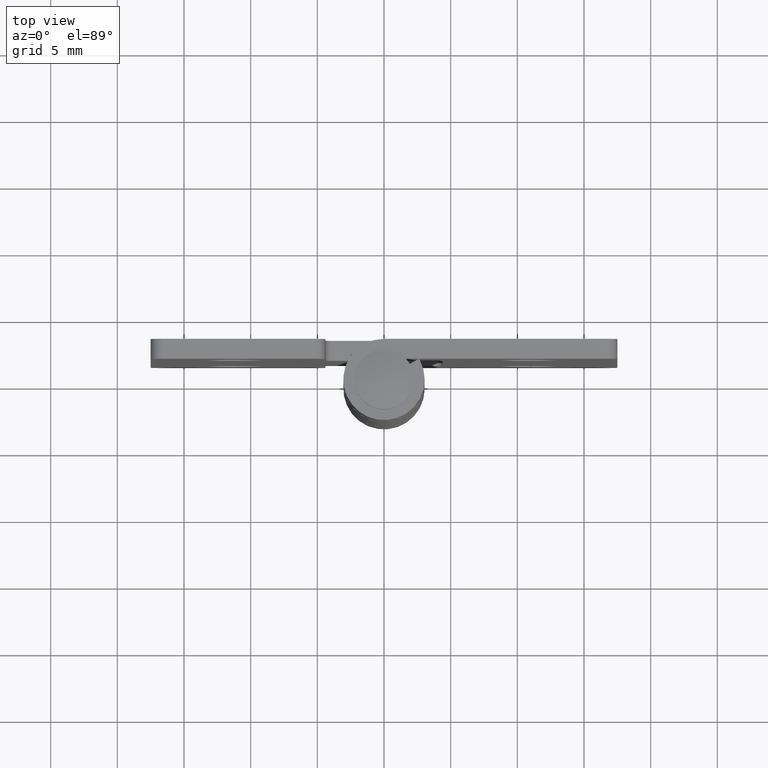
[diagram: clean part render]
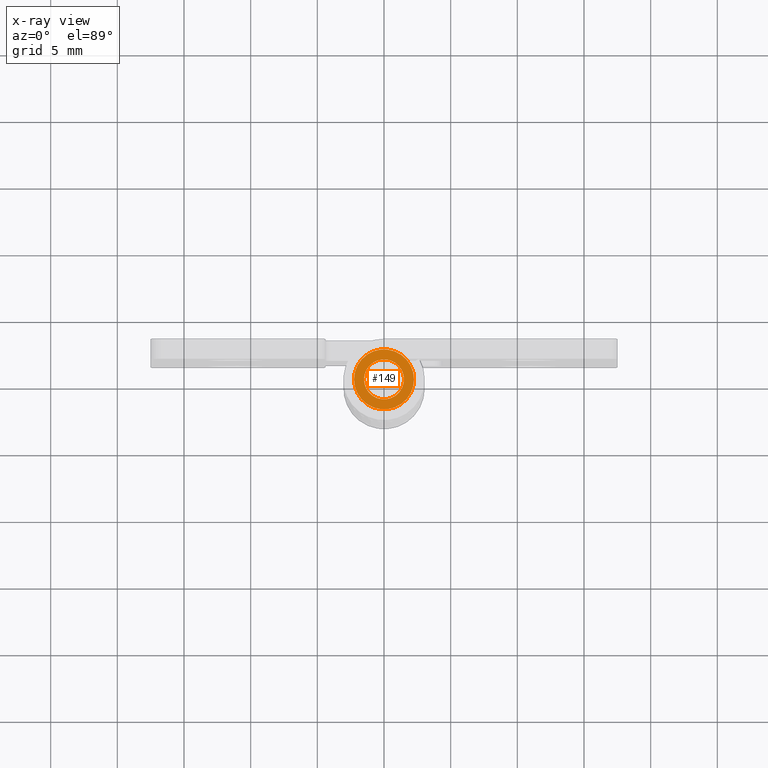
[diagram: x-ray — body ghosted, one internal face saturated and labeled with its STEP entity id]
A machine part, top view, then the same camera in x-ray: the body is ghosted and one INTERNAL B-rep face — a face not visible from any outside direction — is saturated and labeled: STEP entity #149.
In plain terms, the highlighted planar face has unit normal (0, 0, -1).
Its self-contained STEP definition (entity closure, byte-faithful):
#149=ADVANCED_FACE('',(#207,#208),#206,.T.);
#206=PLANE('',#789);
#207=FACE_OUTER_BOUND('',#790,.T.);
#208=FACE_BOUND('',#791,.T.);
#786=CARTESIAN_POINT('',(5.17499999999E+00,-4.67653718043E+00,4.08000000000E+01));
#787=DIRECTION('',(-0.00000000000E+00,0.00000000000E+00,-1.00000000000E+00));
#788=DIRECTION('',(-1.00000000000E+00,0.00000000000E+00,0.00000000000E+00));
#789=AXIS2_PLACEMENT_3D('',#786,#787,#788);
#790=EDGE_LOOP('',(#1081,#1082));
#791=EDGE_LOOP('',(#1083,#1084));
#1081=ORIENTED_EDGE('',*,*,#1375,.T.);
#1082=ORIENTED_EDGE('',*,*,#1376,.T.);
#1083=ORIENTED_EDGE('',*,*,#1377,.F.);
#1084=ORIENTED_EDGE('',*,*,#1378,.F.);
#1375=EDGE_CURVE('',#1522,#1523,#1524,.T.);
#1376=EDGE_CURVE('',#1523,#1522,#1530,.T.);
#1377=EDGE_CURVE('',#1536,#1537,#1538,.T.);
#1378=EDGE_CURVE('',#1537,#1536,#1544,.T.);
#1522=VERTEX_POINT('',#2502);
#1523=VERTEX_POINT('',#2503);
#1524=CIRCLE('',#2507,2.25000000000E+00);
#1530=CIRCLE('',#2511,2.25000000000E+00);
#1536=VERTEX_POINT('',#2512);
#1537=VERTEX_POINT('',#2513);
#1538=CIRCLE('',#2517,1.50000000000E+00);
#1544=CIRCLE('',#2521,1.50000000000E+00);
#2502=CARTESIAN_POINT('',(-2.25000000000E+00,0.00000000000E+00,4.08000000000E+01));
#2503=CARTESIAN_POINT('',(2.25000000000E+00,2.22044604925E-16,4.08000000000E+01));
#2504=CARTESIAN_POINT('',(0.00000000000E+00,0.00000000000E+00,4.08000000000E+01));
#2505=DIRECTION('',(-0.00000000000E+00,0.00000000000E+00,-1.00000000000E+00));
#2506=DIRECTION('',(-1.00000000000E+00,-1.22460635382E-16,0.00000000000E+00));
#2507=AXIS2_PLACEMENT_3D('',#2504,#2505,#2506);
#2508=CARTESIAN_POINT('',(0.00000000000E+00,0.00000000000E+00,4.08000000000E+01));
#2509=DIRECTION('',(-0.00000000000E+00,0.00000000000E+00,-1.00000000000E+00));
#2510=DIRECTION('',(-1.00000000000E+00,-1.22460635382E-16,0.00000000000E+00));
#2511=AXIS2_PLACEMENT_3D('',#2508,#2509,#2510);
#2512=CARTESIAN_POINT('',(1.50000000000E+00,-7.40148683083E-17,4.08000000000E+01));
#2513=CARTESIAN_POINT('',(-1.50000000000E+00,0.00000000000E+00,4.08000000000E+01));
#2514=CARTESIAN_POINT('',(0.00000000000E+00,0.00000000000E+00,4.08000000000E+01));
#2515=DIRECTION('',(-0.00000000000E+00,0.00000000000E+00,-1.00000000000E+00));
#2516=DIRECTION('',(-1.00000000000E+00,-1.22460635382E-16,0.00000000000E+00));
#2517=AXIS2_PLACEMENT_3D('',#2514,#2515,#2516);
#2518=CARTESIAN_POINT('',(0.00000000000E+00,0.00000000000E+00,4.08000000000E+01));
#2519=DIRECTION('',(-0.00000000000E+00,0.00000000000E+00,-1.00000000000E+00));
#2520=DIRECTION('',(-1.00000000000E+00,-1.22460635382E-16,0.00000000000E+00));
#2521=AXIS2_PLACEMENT_3D('',#2518,#2519,#2520);